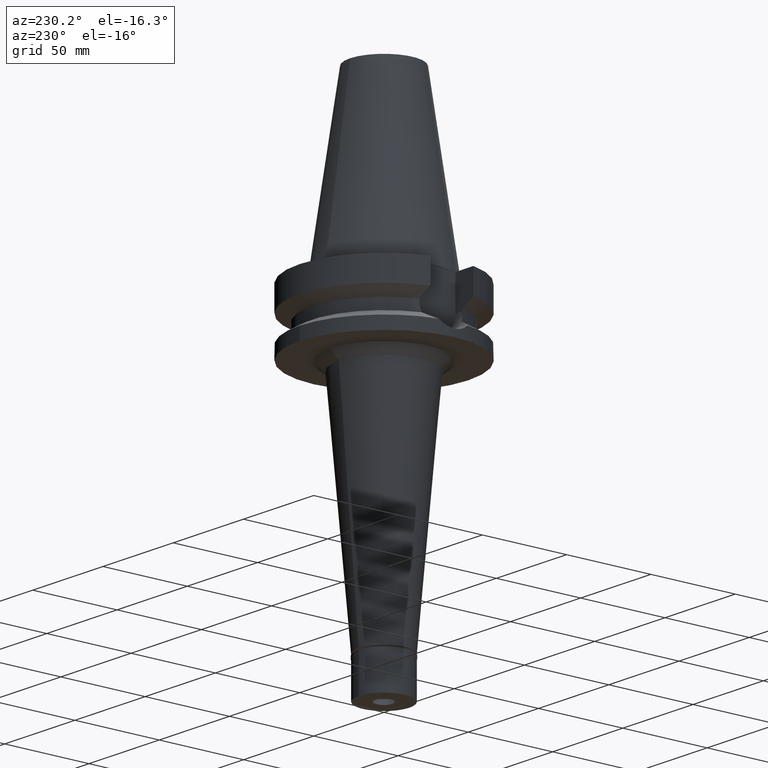
[diagram: clean part render]
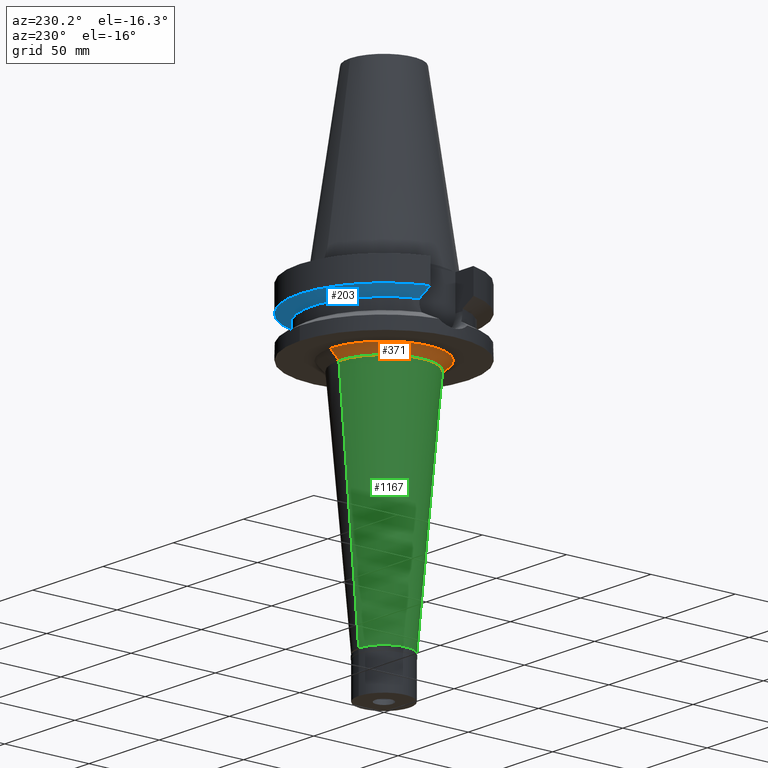
[diagram: same view with three faces highlighted in distinct colors, each labeled with its STEP entity id]
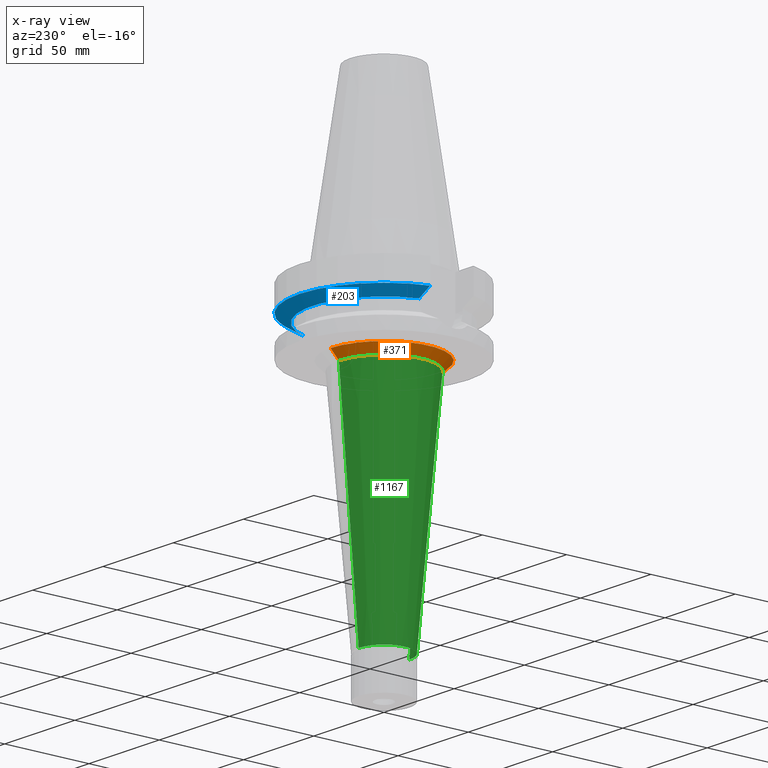
[diagram: x-ray of the same camera — body ghosted, the three highlighted faces saturated]
A machine part, auxiliary view with three faces highlighted in distinct colors.
The next image is the same camera in x-ray (body ghosted, the three faces saturated) — at least one of them is partly hidden behind the body in this view.
Their STEP definitions:

[orange] entity #371 — the highlighted conical surface has half-angle 45 deg.
#68 = ORIENTED_EDGE ( 'NONE', *, *, #356, .F. ) ;
#259 = VERTEX_POINT ( 'NONE', #2133 ) ;
#347 = VECTOR ( 'NONE', #1726, 1000.000000000000000 ) ;
#356 = EDGE_CURVE ( 'NONE', #961, #1517, #1731, .T. ) ;
#371 = ADVANCED_FACE ( 'NONE', ( #1958 ), #2202, .T. ) ;
#377 = CARTESIAN_POINT ( 'NONE',  ( 0.0000000000000000000, -26.74097864517999668, -43.00000000000000000 ) ) ;
#390 = AXIS2_PLACEMENT_3D ( 'NONE', #1254, #2921, #1973 ) ;
#404 = DIRECTION ( 'NONE',  ( 0.0000000000000000000, 0.0000000000000000000, -1.000000000000000000 ) ) ;
#510 = DIRECTION ( 'NONE',  ( 0.0000000000000000000, 0.7071067811865969777, -0.7071067811864980568 ) ) ;
#542 = EDGE_CURVE ( 'NONE', #961, #259, #1907, .T. ) ;
#611 = CIRCLE ( 'NONE', #1757, 26.74097864517999668 ) ;
#779 = EDGE_CURVE ( 'NONE', #1517, #2237, #611, .T. ) ;
#786 = CARTESIAN_POINT ( 'NONE',  ( 0.0000000000000000000, 26.74097864517999668, -43.00000000000000000 ) ) ;
#924 = EDGE_CURVE ( 'NONE', #259, #2237, #1302, .T. ) ;
#961 = VERTEX_POINT ( 'NONE', #2388 ) ;
#1044 = ORIENTED_EDGE ( 'NONE', *, *, #924, .T. ) ;
#1075 = CARTESIAN_POINT ( 'NONE',  ( 0.0000000000000000000, 0.0000000000000000000, -38.00000000000000000 ) ) ;
#1250 = ORIENTED_EDGE ( 'NONE', *, *, #542, .T. ) ;
#1254 = CARTESIAN_POINT ( 'NONE',  ( 0.0000000000000000000, 0.0000000000000000000, -40.50000000000000000 ) ) ;
#1302 = LINE ( 'NONE', #2929, #347 ) ;
#1517 = VERTEX_POINT ( 'NONE', #377 ) ;
#1613 = ORIENTED_EDGE ( 'NONE', *, *, #779, .F. ) ;
#1726 = DIRECTION ( 'NONE',  ( 0.0000000000000000000, -0.7071067811865969777, -0.7071067811864980568 ) ) ;
#1731 = LINE ( 'NONE', #2949, #2763 ) ;
#1757 = AXIS2_PLACEMENT_3D ( 'NONE', #2614, #404, #2139 ) ;
#1907 = CIRCLE ( 'NONE', #3014, 31.74097864517999668 ) ;
#1958 = FACE_OUTER_BOUND ( 'NONE', #2216, .T. ) ;
#1973 = DIRECTION ( 'NONE',  ( 0.0000000000000000000, 1.000000000000000000, 0.0000000000000000000 ) ) ;
#2081 = DIRECTION ( 'NONE',  ( 0.0000000000000000000, 0.0000000000000000000, -1.000000000000000000 ) ) ;
#2133 = CARTESIAN_POINT ( 'NONE',  ( 0.0000000000000000000, 31.74097864517999668, -38.00000000000000000 ) ) ;
#2139 = DIRECTION ( 'NONE',  ( 0.0000000000000000000, -1.000000000000000000, 0.0000000000000000000 ) ) ;
#2202 = CONICAL_SURFACE ( 'NONE', #390, 29.24097864517999668, 0.7853981633972997312 ) ;
#2216 = EDGE_LOOP ( 'NONE', ( #1613, #68, #1250, #1044 ) ) ;
#2237 = VERTEX_POINT ( 'NONE', #786 ) ;
#2335 = DIRECTION ( 'NONE',  ( 0.0000000000000000000, -1.000000000000000000, 0.0000000000000000000 ) ) ;
#2388 = CARTESIAN_POINT ( 'NONE',  ( 0.0000000000000000000, -31.74097864517999668, -38.00000000000000000 ) ) ;
#2614 = CARTESIAN_POINT ( 'NONE',  ( 0.0000000000000000000, 0.0000000000000000000, -43.00000000000000000 ) ) ;
#2763 = VECTOR ( 'NONE', #510, 1000.000000000000000 ) ;
#2921 = DIRECTION ( 'NONE',  ( 0.0000000000000000000, 0.0000000000000000000, 1.000000000000000000 ) ) ;
#2929 = CARTESIAN_POINT ( 'NONE',  ( 0.0000000000000000000, 31.74097864517999668, -38.00000000000000000 ) ) ;
#2949 = CARTESIAN_POINT ( 'NONE',  ( 0.0000000000000000000, -31.74097864517999668, -38.00000000000000000 ) ) ;
#3014 = AXIS2_PLACEMENT_3D ( 'NONE', #1075, #2081, #2335 ) ;

[blue] entity #203 — the highlighted conical surface has half-angle 60 deg.
#66 = VERTEX_POINT ( 'NONE', #1325 ) ;
#186 = CARTESIAN_POINT ( 'NONE',  ( -40.51083188481999997, 12.84999999999999964, -19.99281925464999787 ) ) ;
#203 = ADVANCED_FACE ( 'NONE', ( #393 ), #293, .T. ) ;
#276 = DIRECTION ( 'NONE',  ( -0.9531960443486575674, 0.3023529411764863672, 0.0000000000000000000 ) ) ;
#285 = EDGE_CURVE ( 'NONE', #739, #66, #1573, .T. ) ;
#293 = CONICAL_SURFACE ( 'NONE', #1805, 46.25000000000000000, 1.047197551196400456 ) ;
#354 = VERTEX_POINT ( 'NONE', #730 ) ;
#393 = FACE_OUTER_BOUND ( 'NONE', #830, .T. ) ;
#400 = CARTESIAN_POINT ( 'NONE',  ( -48.32056912780999625, 12.85000385852000093, -15.66265767138999898 ) ) ;
#685 = DIRECTION ( 'NONE',  ( 0.0000000000000000000, 0.0000000000000000000, 1.000000000000000000 ) ) ;
#730 = CARTESIAN_POINT ( 'NONE',  ( -40.51083188481999997, 12.84999999999999964, -19.99281925464999787 ) ) ;
#739 = VERTEX_POINT ( 'NONE', #2886 ) ;
#780 = B_SPLINE_CURVE_WITH_KNOTS ( 'NONE', 3,
 ( #186, #1693, #952, #939 ),
 .UNSPECIFIED., .F., .F.,
 ( 4, 4 ),
 ( 0.0000000000000000000, 1.000000000000000000 ),
 .UNSPECIFIED. ) ;
#830 = EDGE_LOOP ( 'NONE', ( #1727, #2686, #3150, #2507 ) ) ;
#908 = AXIS2_PLACEMENT_3D ( 'NONE', #916, #685, #2146 ) ;
#916 = CARTESIAN_POINT ( 'NONE',  ( 0.0000000000000000000, 1.006319759053999930E-14, -15.66269223573000069 ) ) ;
#939 = CARTESIAN_POINT ( 'NONE',  ( -48.32056912780999625, 12.85000385852000093, -15.66265767138999898 ) ) ;
#952 = CARTESIAN_POINT ( 'NONE',  ( -45.51180301983914944, 12.85000771239541351, -17.22986482407244324 ) ) ;
#1031 = CARTESIAN_POINT ( 'NONE',  ( 0.0000000000000000000, 1.006319759053999930E-14, -19.99281925464999787 ) ) ;
#1046 = VERTEX_POINT ( 'NONE', #400 ) ;
#1325 = CARTESIAN_POINT ( 'NONE',  ( 40.51083297203000200, 12.84999657246999938, -19.99284555851999912 ) ) ;
#1490 = AXIS2_PLACEMENT_3D ( 'NONE', #1031, #1764, #276 ) ;
#1573 = B_SPLINE_CURVE_WITH_KNOTS ( 'NONE', 3,
 ( #3130, #2891, #2396, #2370 ),
 .UNSPECIFIED., .F., .F.,
 ( 4, 4 ),
 ( 0.0000000000000000000, 1.000000000000000000 ),
 .UNSPECIFIED. ) ;
#1656 = CARTESIAN_POINT ( 'NONE',  ( 0.0000000000000000000, 1.006319759053999930E-14, -17.82775574519000017 ) ) ;
#1693 = CARTESIAN_POINT ( 'NONE',  ( -42.90863232185251519, 12.84999314245379587, -18.67324368411542324 ) ) ;
#1727 = ORIENTED_EDGE ( 'NONE', *, *, #1806, .F. ) ;
#1764 = DIRECTION ( 'NONE',  ( 0.0000000000000000000, 0.0000000000000000000, -1.000000000000000000 ) ) ;
#1805 = AXIS2_PLACEMENT_3D ( 'NONE', #1656, #2846, #2351 ) ;
#1806 = EDGE_CURVE ( 'NONE', #739, #1046, #2819, .T. ) ;
#2146 = DIRECTION ( 'NONE',  ( 0.0000000000000000000, 1.000000000000000000, 0.0000000000000000000 ) ) ;
#2351 = DIRECTION ( 'NONE',  ( 0.0000000000000000000, 1.000000000000000000, 0.0000000000000000000 ) ) ;
#2354 = CIRCLE ( 'NONE', #1490, 42.50000000000002132 ) ;
#2370 = CARTESIAN_POINT ( 'NONE',  ( 40.51083297203000200, 12.84999657246999938, -19.99284555851999912 ) ) ;
#2396 = CARTESIAN_POINT ( 'NONE',  ( 42.90862489466591256, 12.84999313797018594, -18.67324780284967645 ) ) ;
#2507 = ORIENTED_EDGE ( 'NONE', *, *, #2511, .T. ) ;
#2511 = EDGE_CURVE ( 'NONE', #354, #1046, #780, .T. ) ;
#2686 = ORIENTED_EDGE ( 'NONE', *, *, #285, .T. ) ;
#2809 = EDGE_CURVE ( 'NONE', #354, #66, #2354, .T. ) ;
#2819 = CIRCLE ( 'NONE', #908, 50.00000000000000000 ) ;
#2846 = DIRECTION ( 'NONE',  ( 0.0000000000000000000, 0.0000000000000000000, 1.000000000000000000 ) ) ;
#2886 = CARTESIAN_POINT ( 'NONE',  ( 48.32056912815000516, 12.85000385725999905, -15.66265768273000170 ) ) ;
#2891 = CARTESIAN_POINT ( 'NONE',  ( 45.51179901593025079, 12.85000770987397090, -17.22986705846993161 ) ) ;
#3130 = CARTESIAN_POINT ( 'NONE',  ( 48.32056912815000516, 12.85000385725999905, -15.66265768273000170 ) ) ;
#3150 = ORIENTED_EDGE ( 'NONE', *, *, #2809, .F. ) ;

[green] entity #1167 — the highlighted conical surface has half-angle 5 deg.
#87 = VERTEX_POINT ( 'NONE', #94 ) ;
#90 = DIRECTION ( 'NONE',  ( 0.0000000000000000000, 0.08715574274766389740, -0.9961946980917451011 ) ) ;
#94 = CARTESIAN_POINT ( 'NONE',  ( 0.0000000000000000000, -15.00000000000000000, -177.1999999999999886 ) ) ;
#209 = DIRECTION ( 'NONE',  ( 0.0000000000000000000, 0.0000000000000000000, 1.000000000000000000 ) ) ;
#272 = ORIENTED_EDGE ( 'NONE', *, *, #3140, .T. ) ;
#377 = CARTESIAN_POINT ( 'NONE',  ( 0.0000000000000000000, -26.74097864517999668, -43.00000000000000000 ) ) ;
#404 = DIRECTION ( 'NONE',  ( 0.0000000000000000000, 0.0000000000000000000, -1.000000000000000000 ) ) ;
#452 = CONICAL_SURFACE ( 'NONE', #2531, 20.87048932259000367, 0.08726646259969973729 ) ;
#496 = DIRECTION ( 'NONE',  ( 0.0000000000000000000, 1.000000000000000000, 0.0000000000000000000 ) ) ;
#515 = FACE_OUTER_BOUND ( 'NONE', #1771, .T. ) ;
#571 = EDGE_CURVE ( 'NONE', #1517, #87, #2807, .T. ) ;
#611 = CIRCLE ( 'NONE', #1757, 26.74097864517999668 ) ;
#779 = EDGE_CURVE ( 'NONE', #1517, #2237, #611, .T. ) ;
#786 = CARTESIAN_POINT ( 'NONE',  ( 0.0000000000000000000, 26.74097864517999668, -43.00000000000000000 ) ) ;
#958 = CIRCLE ( 'NONE', #2255, 15.00000000000000000 ) ;
#1167 = ADVANCED_FACE ( 'NONE', ( #515 ), #452, .T. ) ;
#1201 = EDGE_CURVE ( 'NONE', #2237, #2093, #1590, .T. ) ;
#1212 = DIRECTION ( 'NONE',  ( 0.0000000000000000000, 1.000000000000000000, 0.0000000000000000000 ) ) ;
#1249 = CARTESIAN_POINT ( 'NONE',  ( 0.0000000000000000000, 0.0000000000000000000, -177.1999999999999886 ) ) ;
#1378 = ORIENTED_EDGE ( 'NONE', *, *, #1201, .T. ) ;
#1474 = CARTESIAN_POINT ( 'NONE',  ( 0.0000000000000000000, 15.00000000000000000, -177.1999999999999886 ) ) ;
#1517 = VERTEX_POINT ( 'NONE', #377 ) ;
#1590 = LINE ( 'NONE', #1847, #1864 ) ;
#1757 = AXIS2_PLACEMENT_3D ( 'NONE', #2614, #404, #2139 ) ;
#1771 = EDGE_LOOP ( 'NONE', ( #272, #1981, #3163, #1378 ) ) ;
#1847 = CARTESIAN_POINT ( 'NONE',  ( 0.0000000000000000000, 26.74097864517999668, -43.00000000000000000 ) ) ;
#1864 = VECTOR ( 'NONE', #2328, 1000.000000000000114 ) ;
#1981 = ORIENTED_EDGE ( 'NONE', *, *, #571, .F. ) ;
#2093 = VERTEX_POINT ( 'NONE', #1474 ) ;
#2139 = DIRECTION ( 'NONE',  ( 0.0000000000000000000, -1.000000000000000000, 0.0000000000000000000 ) ) ;
#2237 = VERTEX_POINT ( 'NONE', #786 ) ;
#2255 = AXIS2_PLACEMENT_3D ( 'NONE', #1249, #2642, #496 ) ;
#2328 = DIRECTION ( 'NONE',  ( 0.0000000000000000000, -0.08715574274766389740, -0.9961946980917451011 ) ) ;
#2531 = AXIS2_PLACEMENT_3D ( 'NONE', #2697, #209, #1212 ) ;
#2614 = CARTESIAN_POINT ( 'NONE',  ( 0.0000000000000000000, 0.0000000000000000000, -43.00000000000000000 ) ) ;
#2642 = DIRECTION ( 'NONE',  ( 0.0000000000000000000, 0.0000000000000000000, 1.000000000000000000 ) ) ;
#2697 = CARTESIAN_POINT ( 'NONE',  ( 0.0000000000000000000, 0.0000000000000000000, -110.1000000000000085 ) ) ;
#2807 = LINE ( 'NONE', #3082, #3019 ) ;
#3019 = VECTOR ( 'NONE', #90, 1000.000000000000114 ) ;
#3082 = CARTESIAN_POINT ( 'NONE',  ( 0.0000000000000000000, -26.74097864517999668, -43.00000000000000000 ) ) ;
#3140 = EDGE_CURVE ( 'NONE', #2093, #87, #958, .T. ) ;
#3163 = ORIENTED_EDGE ( 'NONE', *, *, #779, .T. ) ;